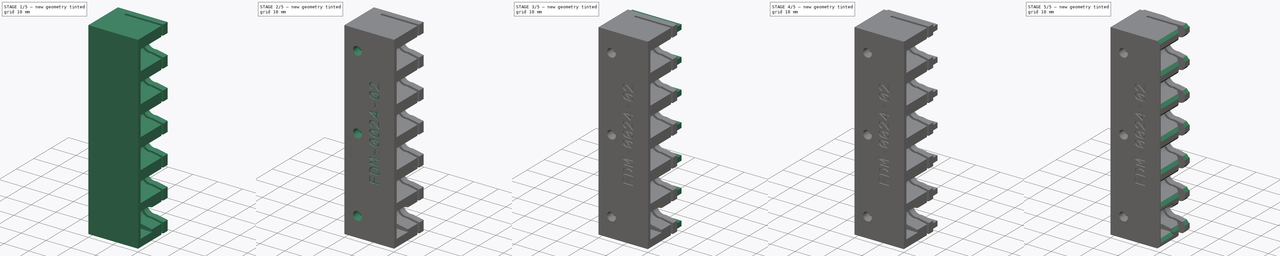
[diagram: build sequence overview — one tinted view per stage of 5, left to right]
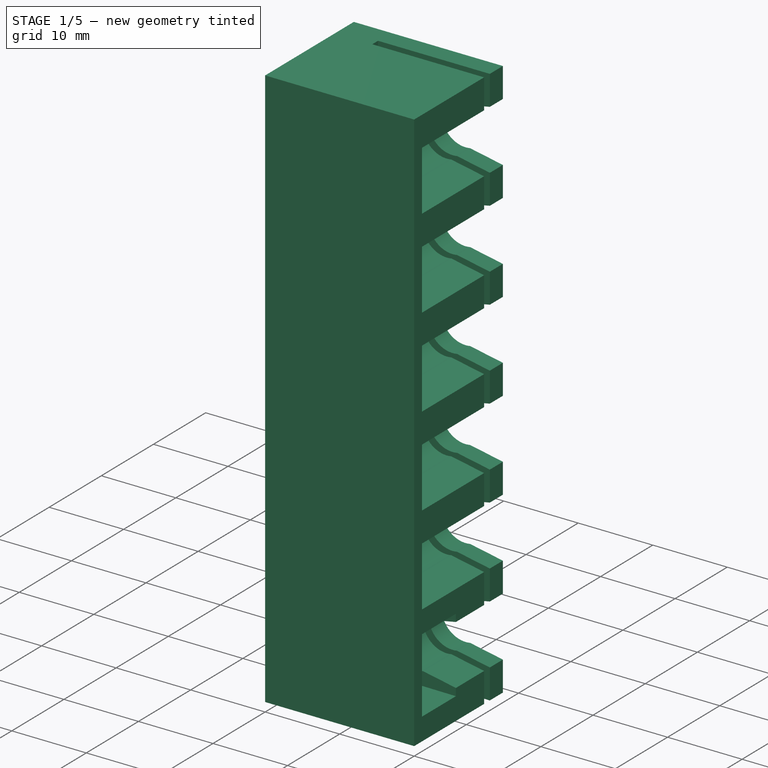
[diagram: stage 1 of 5 — iso view after this stage's code; geometry added in this stage tinted green]
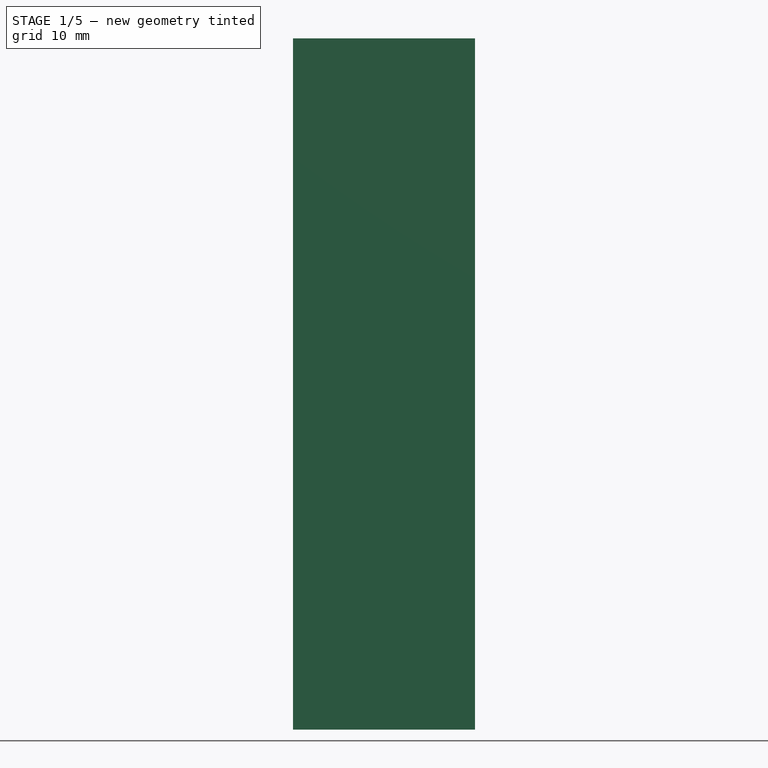
[diagram: stage 1 of 5 — front view after this stage's code; geometry added in this stage tinted green]
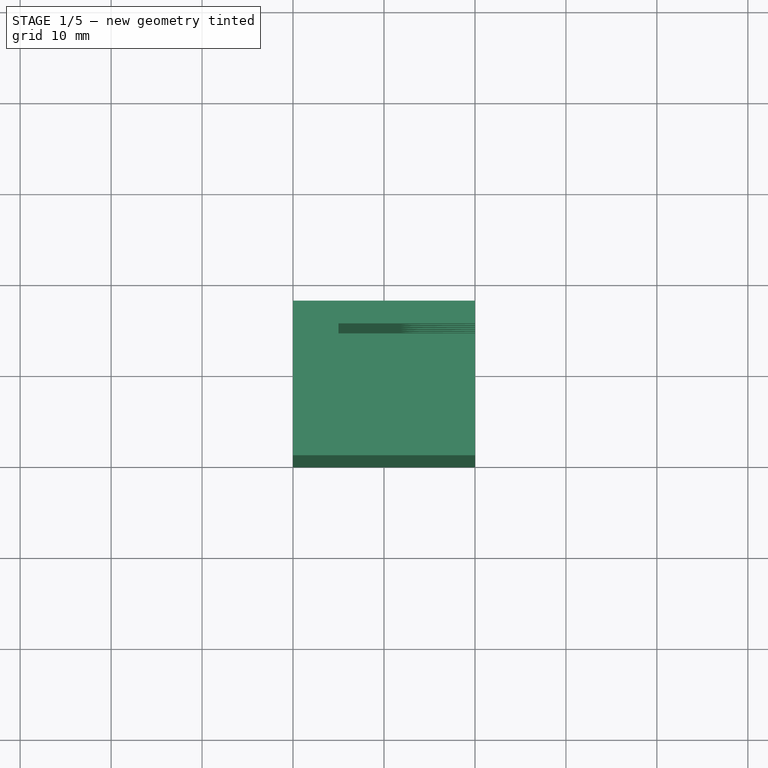
[diagram: stage 1 of 5 — top view after this stage's code; geometry added in this stage tinted green]
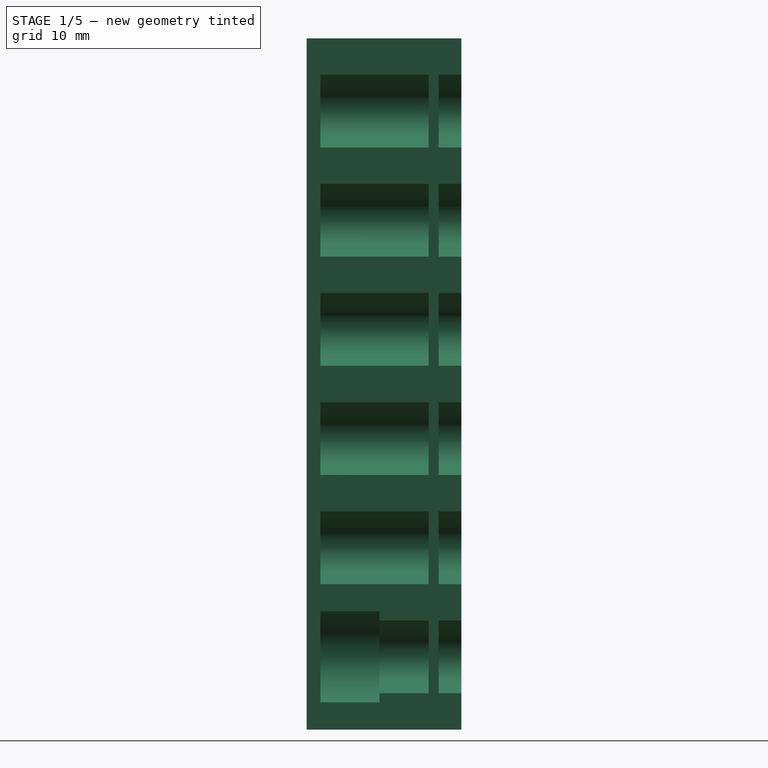
[diagram: stage 1 of 5 — right view after this stage's code; geometry added in this stage tinted green]
FCSTD DOCUMENT  (FreeCAD 0.19R24291 (Git))
Label: FDM-0024_nozzle-holder
License: All rights reserved
LicenseURL: http://en.wikipedia.org/wiki/All_rights_reserved
objects: PartDesign::Pocket×11, Part::Part2DObjectPython×7, Sketcher::SketchObject×6, PartDesign::Plane×3, PartDesign::Chamfer×3, PartDesign::Pad×2, PartDesign::Body×1
note: 49 computed .brp shape members not serialized (recipe doc carries the construction recipe); baked Part::Feature solids carry a one-line shape summary decoded from their .brp

FEATURE [Sketcher::SketchObject] Sketch
  FullyConstrained = true
  MapMode = 5
  Support = -> [XY_Plane]
  sketch-geometry (8):
    g0: LineSegment StartX=20 StartY=17 StartZ=0 EndX=0 EndY=17 EndZ=0
    g1: LineSegment StartX=0 StartY=17 StartZ=0 EndX=0 EndY=0 EndZ=0
    g2: LineSegment StartX=0 StartY=0 StartZ=0 EndX=20 EndY=0 EndZ=0
    g3: LineSegment StartX=20 StartY=13.4 StartZ=0 EndX=5 EndY=13.4 EndZ=0
    g4: LineSegment StartX=5 StartY=13.4 StartZ=0 EndX=5 EndY=14.5 EndZ=0
    g5: LineSegment StartX=5 StartY=14.5 StartZ=0 EndX=20 EndY=14.5 EndZ=0
    g6: LineSegment StartX=20 StartY=14.5 StartZ=0 EndX=20 EndY=17 EndZ=0
    g7: LineSegment StartX=20 StartY=13.4 StartZ=0 EndX=20 EndY=0 EndZ=0
  constraints (23):
    c: Coincident(g0,g1)
    c: Horizontal(g0)
    c: Vertical(g1)
    c: Distance(g1) = 17
    c: Coincident(g2,g1)
    c: Horizontal(g2)
    c: Coincident(g-1,g1)
    c: Horizontal(g3)
    c: Coincident(g4,g3)
    c: Vertical(g4)
    c: Coincident(g5,g4)
    c: Horizontal(g5)
    c: Coincident(g6,g5)
    c: Coincident(g6,g0)
    c: Vertical(g6)
    c: Distance(g6) = 2.5
    c: Distance(g4) = 1.1
    c: Distance(g0) = 20
    c: Distance(g2) = 20
    c: Coincident(g7,g3)
    c: Coincident(g7,g2)
    c: Vertical(g7)
    c: DistanceX(g3,g3) = 15
FEATURE [PartDesign::Pad] Pad
  AllowMultiFace = false
  Direction = (1,1,1)
  Length = 76
  Length2 = 100
  Profile = -> Sketch
  Refine = true
  Type = 0
FEATURE [Sketcher::SketchObject] Sketch001  label="NozzleCutouts"
  ExternalGeometry = -> [Pad]
  FullyConstrained = false
  MapMode = 5
  Placement = pos=(0,17,0) rot=(0,0.707107,0.707107;3.14159rad)
  Support = -> [Pad]
  sketch-geometry (30):
    g0: LineSegment StartX=-15.6 StartY=16.8568 StartZ=0 EndX=-20 EndY=16 EndZ=0
    g1: LineSegment StartX=-15.6 StartY=23.1432 StartZ=0 EndX=-20 EndY=24 EndZ=0
    g2: LineSegment StartX=-15.6 StartY=28.8568 StartZ=0 EndX=-20 EndY=28 EndZ=0
    g3: LineSegment StartX=-15.6 StartY=35.1432 StartZ=0 EndX=-20 EndY=36 EndZ=0
    g4: LineSegment StartX=-15.6 StartY=40.8568 StartZ=0 EndX=-20 EndY=40 EndZ=0
    g5: LineSegment StartX=-15.6 StartY=47.1432 StartZ=0 EndX=-20 EndY=48 EndZ=0
    g6: ArcOfCircle CenterX=-15 CenterY=20 CenterZ=0 NormalX=0 NormalY=0 NormalZ=1 AngleXU=0 Radius=3.2 StartAngle=4.52377 EndAngle=8.0426
    g7: ArcOfCircle CenterX=-15 CenterY=8 CenterZ=0 NormalX=0 NormalY=0 NormalZ=1 AngleXU=0 Radius=3.2 StartAngle=4.52377 EndAngle=8.0426
    g8: ArcOfCircle CenterX=-15 CenterY=32 CenterZ=0 NormalX=0 NormalY=0 NormalZ=1 AngleXU=0 Radius=3.2 StartAngle=4.52377 EndAngle=8.0426
    g9: ArcOfCircle CenterX=-15 CenterY=44 CenterZ=0 NormalX=0 NormalY=0 NormalZ=1 AngleXU=0 Radius=3.2 StartAngle=4.52377 EndAngle=8.0426
    g10: LineSegment StartX=-20 StartY=48 StartZ=0 EndX=-20 EndY=40 EndZ=0
    g11: LineSegment StartX=-20 StartY=36 StartZ=0 EndX=-20 EndY=28 EndZ=0
    g12: LineSegment StartX=-20 StartY=24 StartZ=0 EndX=-20 EndY=16 EndZ=0
    g13: LineSegment StartX=-20 StartY=12 StartZ=0 EndX=-20 EndY=4 EndZ=0
    g14: LineSegment StartX=-15 StartY=8 StartZ=0 EndX=-15 EndY=44 EndZ=0
    g15: LineSegment StartX=-20 StartY=12 StartZ=0 EndX=-15.6 EndY=11.1432 EndZ=0
    g16: LineSegment StartX=-20 StartY=4 StartZ=0 EndX=-15.6 EndY=4.85675 EndZ=0
    g17: LineSegment StartX=-15 StartY=8 StartZ=0 EndX=-20 EndY=8 EndZ=0
    g18: LineSegment StartX=-15.6 StartY=4.85675 StartZ=0 EndX=-15.6 EndY=47.1432 EndZ=0
    g19: LineSegment StartX=-15 StartY=20 StartZ=0 EndX=-20 EndY=20 EndZ=0
    g20: LineSegment StartX=-15 StartY=32 StartZ=0 EndX=-20 EndY=32 EndZ=0
    g21: LineSegment StartX=-15 StartY=44 StartZ=0 EndX=-20 EndY=44 EndZ=0
    g22: LineSegment StartX=-20 StartY=60 StartZ=0 EndX=-20 EndY=52 EndZ=0
    g23: LineSegment StartX=-15.6 StartY=59.1432 StartZ=0 EndX=-20 EndY=60 EndZ=0
    g24: LineSegment StartX=-15.6 StartY=52.8568 StartZ=0 EndX=-20 EndY=52 EndZ=0
    g25: ArcOfCircle CenterX=-15 CenterY=56 CenterZ=0 NormalX=0 NormalY=0 NormalZ=1 AngleXU=0 Radius=3.2 StartAngle=4.52377 EndAngle=8.0426
    g26: LineSegment StartX=-15.6 StartY=64.8568 StartZ=0 EndX=-20 EndY=64 EndZ=0
    g27: ArcOfCircle CenterX=-15 CenterY=68 CenterZ=0 NormalX=0 NormalY=0 NormalZ=1 AngleXU=0 Radius=3.2 StartAngle=4.52377 EndAngle=8.0426
    g28: LineSegment StartX=-15.6 StartY=71.1432 StartZ=0 EndX=-20 EndY=72 EndZ=0
    g29: LineSegment StartX=-20 StartY=72 StartZ=0 EndX=-20 EndY=64 EndZ=0
  constraints (87):
    c: Coincident(g6,g1)
    c: Coincident(g6,g0)
    c: Diameter(g6) = 6.4
    c: Coincident(g8,g3)
    c: Coincident(g8,g2)
    c: Coincident(g9,g5)
    c: Coincident(g9,g4)
    c: Diameter(g7) = 6.4
    c: Diameter(g8) = 6.4
    c: Diameter(g9) = 6.4
    c: Coincident(g10,g5)
    c: Coincident(g10,g4)
    c: Coincident(g11,g3)
    c: Coincident(g11,g2)
    c: Coincident(g12,g1)
    c: Coincident(g12,g0)
    c: DistanceX(g7,g-1) = 15
    c: Vertical(g11)
    c: Vertical(g12)
    c: Vertical(g13)
    c: Vertical(g10)
    c: PointOnObject(g2,g13)
    c: PointOnObject(g0,g13)
    c: DistanceX(g13,g-1) = 20
    c: DistanceY(g-1,g6) = 20
    c: Coincident(g14,g7)
    c: Coincident(g14,g9)
    c: Vertical(g14)
    c: PointOnObject(g8,g14)
    c: PointOnObject(g6,g14)
    c: DistanceY(g-1,g7) = 8
    c: Coincident(g15,g13)
    c: Coincident(g16,g13)
    c: Coincident(g7,g15)
    c: Coincident(g7,g16)
    c: DistanceY(g13,g13) = 8
    c: Coincident(g17,g7)
    c: PointOnObject(g17,g13)
    c: Symmetric(g13,g13,g17)
    c: Coincident(g18,g7)
    c: Vertical(g18)
    c: DistanceX(g7,g7) = 0.6
    c: PointOnObject(g7,g18)
    c: PointOnObject(g1,g18)
    c: PointOnObject(g0,g18)
    c: DistanceY(g12,g12) = 8
    c: Coincident(g19,g6)
    c: PointOnObject(g19,g12)
    c: Symmetric(g1,g0,g19)
    c: PointOnObject(g3,g18)
    c: PointOnObject(g2,g18)
    c: PointOnObject(g20,g11)
    c: DistanceY(g11,g11) = 8
    c: Symmetric(g3,g2,g20)
    c: Coincident(g20,g8)
    c: PointOnObject(g4,g18)
    c: Coincident(g5,g18)
    c: Coincident(g21,g9)
    c: PointOnObject(g21,g10)
    c: DistanceY(g10,g10) = 8
    c: Symmetric(g5,g4,g21)
    c: Coincident(g25,g23)
    c: Coincident(g25,g24)
    c: Coincident(g22,g23)
    c: Coincident(g22,g24)
    c: Vertical(g22)
    c: Equal(g10,g22) = 11
    c: Coincident(g27,g28)
    c: Coincident(g27,g26)
    c: Coincident(g29,g28)
    c: Coincident(g29,g26)
    c: Vertical(g29)
    c: Diameter(g27) = 6.4
    c: Vertical(g24,g5)
    c: Parallel(g28,g23)
    c: Parallel(g23,g5)
    c: Diameter(g25) = 6.4
    c: Vertical(g24,g23)
    c: Vertical(g5,g26)
    c: Vertical(g26,g27)
    c: Vertical(g25,g27)
    c: Vertical(g27,g9)
    c: Parallel(g26,g24)
    c: DistanceY(g-4,g8) = 32
    c: DistanceY(g-4,g9) = 44
    c: DistanceY(g-4,g25) = 56
    c: DistanceY(g-4,g27) = 68
FEATURE [PartDesign::Pocket] Pocket  label="pkt_NozzleCutouts"
  AllowMultiFace = false
  BaseFeature = -> Pad
  Length = 15.5
  Length2 = 100
  Profile = -> Sketch001
  Refine = true
  Type = 0
FEATURE [Sketcher::SketchObject] Sketch005  label="M3Holes"
  FullyConstrained = true
  MapMode = 2
  Placement = pos=(0,0,0) rot=(0.57735,0.57735,0.57735;4.18879rad)
  Support = -> [Z_Axis]
  sketch-geometry (4):
    g0: Circle CenterX=68 CenterY=5.25 CenterZ=0 NormalX=0 NormalY=0 NormalZ=1 AngleXU=0 Radius=1.75
    g1: Circle CenterX=8 CenterY=5.25 CenterZ=0 NormalX=0 NormalY=0 NormalZ=1 AngleXU=0 Radius=1.75
    g2: Circle CenterX=38 CenterY=5.25 CenterZ=0 NormalX=0 NormalY=0 NormalZ=1 AngleXU=0 Radius=1.75
    g3: LineSegment StartX=8 StartY=5.25 StartZ=0 EndX=68 EndY=5.25 EndZ=0
  constraints (11):
    c: Diameter(g0) = 3.5
    c: Diameter(g1) = 3.5
    c: Diameter(g2) = 3.5
    c: DistanceY(g-1,g1) = 5.25
    c: DistanceX(g-1,g1) = 8
    c: DistanceX(g-1,g2) = 38
    c: DistanceX(g-1,g0) = 68
    c: Coincident(g3,g1)
    c: Horizontal(g3)
    c: Coincident(g0,g3)
    c: PointOnObject(g2,g3)
FEATURE [Sketcher::SketchObject] Sketch006  label="M3SquareNutCutOut"
  FullyConstrained = true
  MapMode = 5
  Placement = pos=(0,0,0) rot=(0.57735,-0.57735,-0.57735;2.0944rad)
  sketch-geometry (15):
    g0: LineSegment StartX=-6 StartY=70.9 StartZ=0 EndX=-3.2 EndY=70.9 EndZ=0
    g1: LineSegment StartX=-3.2 StartY=70.9 StartZ=0 EndX=-3.2 EndY=65.1 EndZ=0
    g2: LineSegment StartX=-3.2 StartY=65.1 StartZ=0 EndX=-6 EndY=65.1 EndZ=0
    g3: LineSegment StartX=-6 StartY=65.1 StartZ=0 EndX=-6 EndY=70.9 EndZ=0
    g4: LineSegment StartX=-6 StartY=40.9 StartZ=0 EndX=-3.2 EndY=40.9 EndZ=0
    g5: LineSegment StartX=-3.2 StartY=40.9 StartZ=0 EndX=-3.2 EndY=35.1 EndZ=0
    g6: LineSegment StartX=-3.2 StartY=35.1 StartZ=0 EndX=-6 EndY=35.1 EndZ=0
    g7: LineSegment StartX=-6 StartY=35.1 StartZ=0 EndX=-6 EndY=40.9 EndZ=0
    g8: LineSegment StartX=-6 StartY=10.9 StartZ=0 EndX=-3.2 EndY=10.9 EndZ=0
    g9: LineSegment StartX=-3.2 StartY=10.9 StartZ=0 EndX=-3.2 EndY=5.1 EndZ=0
    g10: LineSegment StartX=-3.2 StartY=5.1 StartZ=0 EndX=-6 EndY=5.1 EndZ=0
    g11: LineSegment StartX=-6 StartY=5.1 StartZ=0 EndX=-6 EndY=10.9 EndZ=0
    g12: LineSegment StartX=0 StartY=8 StartZ=0 EndX=20 EndY=8 EndZ=0
    g13: LineSegment StartX=0 StartY=38 StartZ=0 EndX=20 EndY=38 EndZ=0
    g14: LineSegment StartX=0 StartY=68 StartZ=0 EndX=20 EndY=68 EndZ=0
  constraints (45):
    c: Coincident(g0,g1)
    c: Coincident(g1,g2)
    c: Coincident(g2,g3)
    c: Coincident(g3,g0)
    c: Horizontal(g0)
    c: Horizontal(g2)
    c: Vertical(g1)
    c: Vertical(g3)
    c: Coincident(g4,g5)
    c: Coincident(g5,g6)
    c: Coincident(g6,g7)
    c: Coincident(g7,g4)
    c: Horizontal(g4)
    c: Horizontal(g6)
    c: Vertical(g5)
    c: Vertical(g7)
    c: Coincident(g8,g9)
    c: Coincident(g9,g10)
    c: Coincident(g10,g11)
    c: Coincident(g11,g8)
    c: Horizontal(g8)
    c: Horizontal(g10)
    c: Vertical(g9)
    c: Vertical(g11)
    c: Equal(g1,g5)
    c: Equal(g5,g9)
    c: Equal(g2,g6)
    c: Equal(g6,g10)
    c: DistanceX(g-1,g10) = -6
    c: DistanceX(g-1,g6) = -6
    c: DistanceX(g-1,g2) = -6
    c: DistanceX(g8,g8) = 2.8
    c: PointOnObject(g12,g-2)
    c: PointOnObject(g13,g-2)
    c: PointOnObject(g14,g-2)
    c: DistanceY(g-1,g12) = 8
    c: DistanceY(g-1,g13) = 38
    c: DistanceY(g-1,g14) = 68
    c: Symmetric(g10,g8,g12)
    c: Symmetric(g6,g4,g13)
    c: Symmetric(g2,g0,g14)
    c: DistanceY(g5,g5) = 5.8
    c: Equal(g12,g13)
    c: Equal(g13,g14)
    c: DistanceX(g14,g14) = 20
FEATURE [Part::Part2DObjectPython] ShapeString002  label="N045"  # Draft 2D object (typed FeaturePython)
  FontFile = ../../lib/fonts/RobotoMono-VariableFont_weight.ttf
  Placement = pos=(1,17,70) rot=(-1,0,0;1.5708rad)
  Size = 5
  String = 45
  Tracking = 0
FEATURE [Part::Part2DObjectPython] ShapeString003  label="N08"  # Draft 2D object (typed FeaturePython)
  FontFile = ../../lib/fonts/RobotoMono-VariableFont_weight.ttf
  Placement = pos=(1,17,58) rot=(-1,0,0;1.5708rad)
  Size = 5
  String = 8
  Tracking = 0
FEATURE [Part::Part2DObjectPython] ShapeString004  label="N14"  # Draft 2D object (typed FeaturePython)
  FontFile = ../../lib/fonts/RobotoMono-VariableFont_weight.ttf
  Placement = pos=(1,17,46) rot=(-1,0,0;1.5708rad)
  Size = 5
  String = 14
  Tracking = 0
FEATURE [Part::Part2DObjectPython] ShapeString005  label="N24"  # Draft 2D object (typed FeaturePython)
  FontFile = ../../lib/fonts/RobotoMono-VariableFont_weight.ttf
  Placement = pos=(1,17,34) rot=(-1,0,0;1.5708rad)
  Size = 5
  String = 24
  Tracking = 0
FEATURE [Part::Part2DObjectPython] ShapeString006  label="N40"  # Draft 2D object (typed FeaturePython)
  FontFile = ../../lib/fonts/RobotoMono-VariableFont_weight.ttf
  Placement = pos=(1,17,22) rot=(-1,0,0;1.5708rad)
  Size = 5
  String = 40
  Tracking = 0
FEATURE [Part::Part2DObjectPython] ShapeString007  label="N75"  # Draft 2D object (typed FeaturePython)
  FontFile = ../../lib/fonts/RobotoMono-VariableFont_weight.ttf
  Placement = pos=(1,17,10) rot=(-1,0,0;1.5708rad)
  Size = 5
  String = 75
  Tracking = 0
FEATURE [Sketcher::SketchObject] Sketch008  label="NozzleCutouts001"
  AttachmentOffset = pos=(0,0,-9) rot=(0,0,1;0rad)
  ExternalGeometry = -> [Pad]
  FullyConstrained = false
  MapMode = 5
  Placement = pos=(0,8,2e-15) rot=(0,0.707107,0.707107;3.14159rad)
  Support = -> [Pad]
  sketch-geometry (7):
    g0: ArcOfCircle CenterX=-15 CenterY=8 CenterZ=0 NormalX=0 NormalY=0 NormalZ=1 AngleXU=0 Radius=5 StartAngle=4.5921 EndAngle=7.97427
    g1: LineSegment StartX=-20 StartY=13 StartZ=0 EndX=-20 EndY=3 EndZ=0
    g2: LineSegment StartX=-15 StartY=8 StartZ=0 EndX=-15 EndY=44 EndZ=0
    g3: LineSegment StartX=-20 StartY=13 StartZ=0 EndX=-15.6 EndY=12.9639 EndZ=0
    g4: LineSegment StartX=-20 StartY=3 StartZ=0 EndX=-15.6 EndY=3.03613 EndZ=0
    g5: LineSegment StartX=-15 StartY=8 StartZ=0 EndX=-20 EndY=8 EndZ=0
    g6: LineSegment StartX=-15.6 StartY=3.03613 StartZ=0 EndX=-15.6 EndY=47.1432 EndZ=0
  constraints (19):
    c: Diameter(g0) = 10
    c: DistanceX(g0,g-1) = 15
    c: Vertical(g1)
    c: DistanceX(g1,g-1) = 20
    c: Coincident(g2,g0)
    c: Vertical(g2)
    c: DistanceY(g-1,g0) = 8
    c: Coincident(g3,g1)
    c: Coincident(g4,g1)
    c: Coincident(g0,g3)
    c: Coincident(g0,g4)
    c: DistanceY(g1,g1) = 10
    c: Coincident(g5,g0)
    c: PointOnObject(g5,g1)
    c: Symmetric(g1,g1,g5)
    c: Coincident(g6,g0)
    c: Vertical(g6)
    c: DistanceX(g0,g0) = 0.6
    c: PointOnObject(g0,g6)
FEATURE [PartDesign::Pocket] Pocket015  label="N75_Large_Cutout"
  BaseFeature = -> Pocket
  Length = 6.5
  Length2 = 100
  Profile = -> Sketch008
  Type = 0
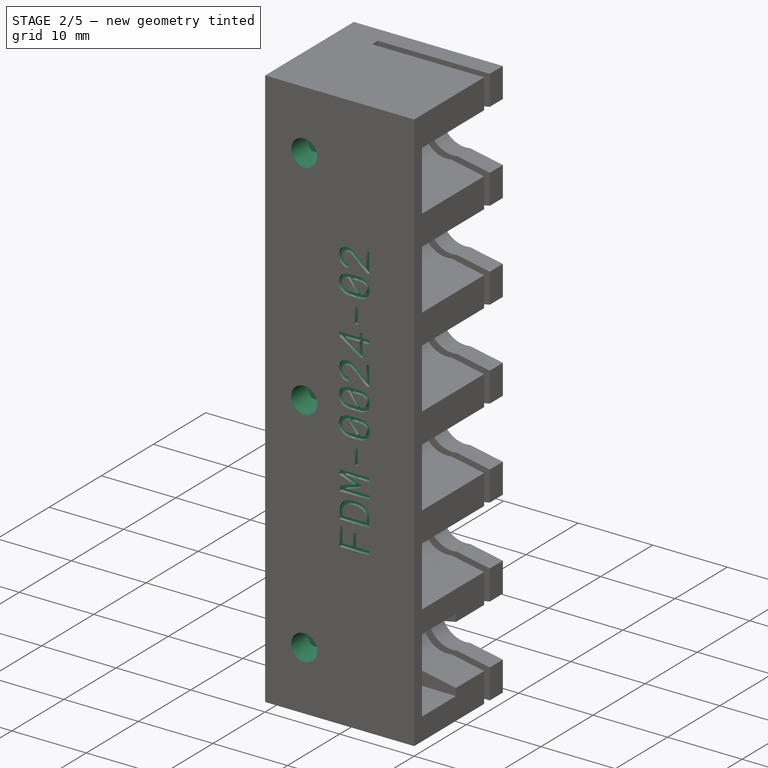
[diagram: stage 2 of 5 — iso view after this stage's code; geometry added in this stage tinted green]
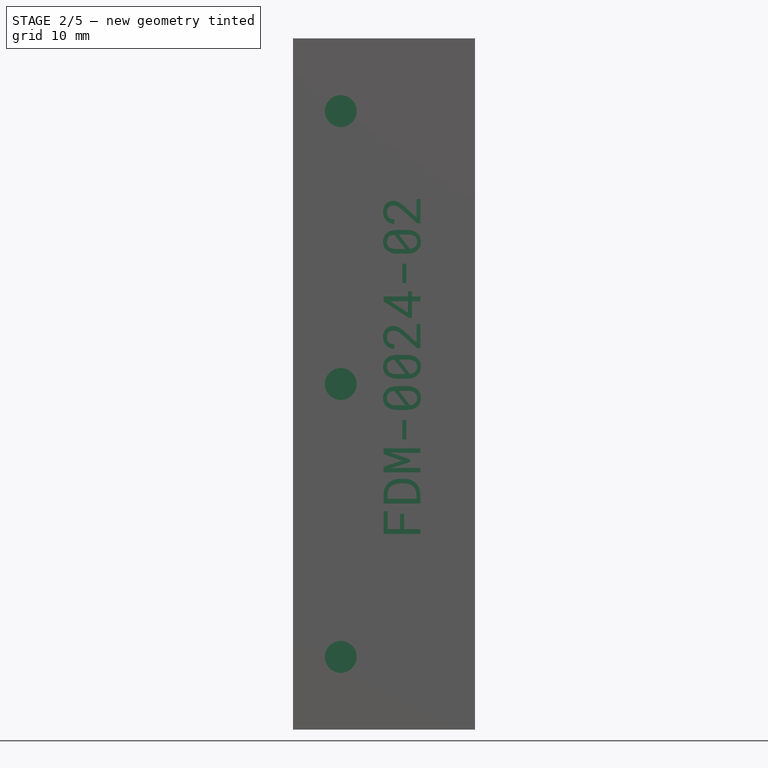
[diagram: stage 2 of 5 — front view after this stage's code; geometry added in this stage tinted green]
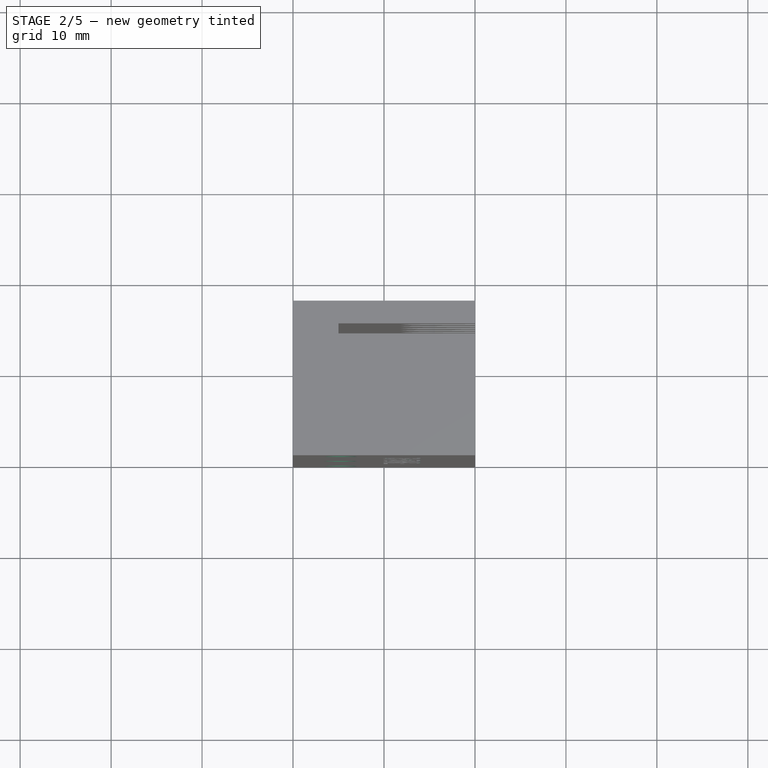
[diagram: stage 2 of 5 — top view after this stage's code; geometry added in this stage tinted green]
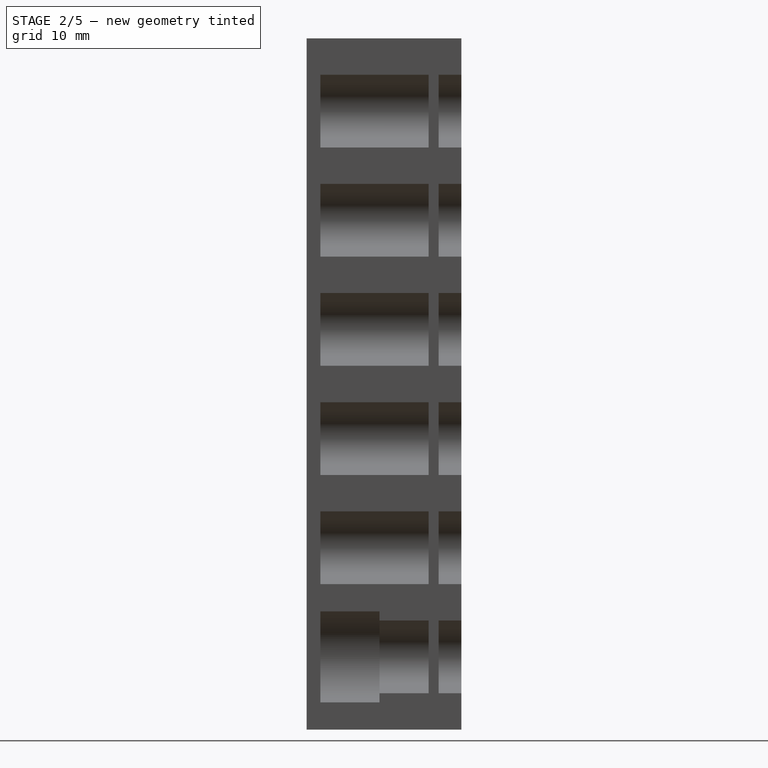
[diagram: stage 2 of 5 — right view after this stage's code; geometry added in this stage tinted green]
FEATURE [PartDesign::Pocket] Pocket003  label="pkt_m3"
  AllowMultiFace = false
  BaseFeature = -> Pocket015
  Length = 10
  Length2 = 100
  Profile = -> Sketch005
  Refine = true
  Reversed = true
  Type = 0
FEATURE [PartDesign::Plane] DatumPlane  label="Datum"
  Length = 64.2127
  MapMode = 5
  Placement = pos=(0,0,0) rot=(0.57735,-0.57735,-0.57735;2.0944rad)
  ResizeMode = 0
  Support = -> [Pocket003]
  Width = 115.213
FEATURE [PartDesign::Plane] DatumPlane001
  Length = 64.2127
  MapMode = 5
  Placement = pos=(0,0,0) rot=(1,0,0;1.5708rad)
  ResizeMode = 0
  Support = -> [Pocket003]
  Width = 115.213
FEATURE [Sketcher::SketchObject] Sketch007  label="Ribs"
  FullyConstrained = true
  MapMode = 5
  Placement = pos=(0,0,0) rot=(0.57735,-0.57735,-0.57735;2.0944rad)
  Support = -> [DatumPlane]
  sketch-geometry (35):
    g0: LineSegment StartX=-17 StartY=15 StartZ=0 EndX=-19.5 EndY=15 EndZ=0
    g1: LineSegment StartX=-19.5 StartY=15 StartZ=0 EndX=-19.5 EndY=13 EndZ=0
    g2: LineSegment StartX=-19.5 StartY=13 StartZ=0 EndX=-17 EndY=13 EndZ=0
    g3: LineSegment StartX=-17 StartY=13 StartZ=0 EndX=-17 EndY=15 EndZ=0
    g4: LineSegment StartX=-17 StartY=27 StartZ=0 EndX=-19.5 EndY=27 EndZ=0
    g5: LineSegment StartX=-19.5 StartY=27 StartZ=0 EndX=-19.5 EndY=25 EndZ=0
    g6: LineSegment StartX=-19.5 StartY=25 StartZ=0 EndX=-17 EndY=25 EndZ=0
    g7: LineSegment StartX=-17 StartY=25 StartZ=0 EndX=-17 EndY=27 EndZ=0
    g8: LineSegment StartX=-17 StartY=39 StartZ=0 EndX=-19.5 EndY=39 EndZ=0
    g9: LineSegment StartX=-19.5 StartY=39 StartZ=0 EndX=-19.5 EndY=37 EndZ=0
    g10: LineSegment StartX=-19.5 StartY=37 StartZ=0 EndX=-17 EndY=37 EndZ=0
    g11: LineSegment StartX=-17 StartY=37 StartZ=0 EndX=-17 EndY=39 EndZ=0
    g12: LineSegment StartX=-17 StartY=51 StartZ=0 EndX=-19.5 EndY=51 EndZ=0
    g13: LineSegment StartX=-19.5 StartY=51 StartZ=0 EndX=-19.5 EndY=49 EndZ=0
    g14: LineSegment StartX=-19.5 StartY=49 StartZ=0 EndX=-17 EndY=49 EndZ=0
    g15: LineSegment StartX=-17 StartY=49 StartZ=0 EndX=-17 EndY=51 EndZ=0
    g16: LineSegment StartX=-17 StartY=63 StartZ=0 EndX=-19.5 EndY=63 EndZ=0
    g17: LineSegment StartX=-19.5 StartY=63 StartZ=0 EndX=-19.5 EndY=61 EndZ=0
    g18: LineSegment StartX=-19.5 StartY=61 StartZ=0 EndX=-17 EndY=61 EndZ=0
    g19: LineSegment StartX=-17 StartY=61 StartZ=0 EndX=-17 EndY=63 EndZ=0
    g20: LineSegment StartX=-17 StartY=75 StartZ=0 EndX=-19.5 EndY=75 EndZ=0
    g21: LineSegment StartX=-19.5 StartY=75 StartZ=0 EndX=-19.5 EndY=73 EndZ=0
    g22: LineSegment StartX=-19.5 StartY=73 StartZ=0 EndX=-17 EndY=73 EndZ=0
    g23: LineSegment StartX=-17 StartY=73 StartZ=0 EndX=-17 EndY=75 EndZ=0
    g24: LineSegment StartX=-17 StartY=3 StartZ=0 EndX=-19.5 EndY=3 EndZ=0
    g25: LineSegment StartX=-19.5 StartY=3 StartZ=0 EndX=-19.5 EndY=1 EndZ=0
    g26: LineSegment StartX=-19.5 StartY=1 StartZ=0 EndX=-17 EndY=1 EndZ=0
    g27: LineSegment StartX=-17 StartY=1 StartZ=0 EndX=-17 EndY=3 EndZ=0
    g28: LineSegment StartX=-17 StartY=1 StartZ=0 EndX=-17 EndY=0 EndZ=0
    g29: LineSegment StartX=-17 StartY=3 StartZ=0 EndX=-17 EndY=13 EndZ=0
    g30: LineSegment StartX=-17 StartY=15 StartZ=0 EndX=-17 EndY=25 EndZ=0
    g31: LineSegment StartX=-17 StartY=27 StartZ=0 EndX=-17 EndY=37 EndZ=0
    g32: LineSegment StartX=-17 StartY=39 StartZ=0 EndX=-17 EndY=49 EndZ=0
    g33: LineSegment StartX=-17 StartY=51 StartZ=0 EndX=-17 EndY=61 EndZ=0
    g34: LineSegment StartX=-17 StartY=63 StartZ=0 EndX=-17 EndY=73 EndZ=0
  constraints (99):
    c: Coincident(g0,g1)
    c: Coincident(g1,g2)
    c: Coincident(g2,g3)
    c: Coincident(g3,g0)
    c: Horizontal(g0)
    c: Horizontal(g2)
    c: Vertical(g1)
    c: Vertical(g3)
    c: Coincident(g4,g5)
    c: Coincident(g5,g6)
    c: Coincident(g6,g7)
    c: Coincident(g7,g4)
    c: Horizontal(g4)
    c: Horizontal(g6)
    c: Vertical(g5)
    c: Vertical(g7)
    c: Coincident(g8,g9)
    c: Coincident(g9,g10)
    c: Coincident(g10,g11)
    c: Coincident(g11,g8)
    c: Horizontal(g8)
    c: Horizontal(g10)
    c: Vertical(g9)
    c: Vertical(g11)
    c: Coincident(g12,g13)
    c: Coincident(g13,g14)
    c: Coincident(g14,g15)
    c: Coincident(g15,g12)
    c: Horizontal(g12)
    c: Horizontal(g14)
    c: Vertical(g13)
    c: Vertical(g15)
    c: Coincident(g16,g17)
    c: Coincident(g17,g18)
    c: Coincident(g18,g19)
    c: Coincident(g19,g16)
    c: Horizontal(g16)
    c: Horizontal(g18)
    c: Vertical(g17)
    c: Vertical(g19)
    c: Coincident(g20,g21)
    c: Coincident(g21,g22)
    c: Coincident(g22,g23)
    c: Coincident(g23,g20)
    c: Horizontal(g20)
    c: Horizontal(g22)
    c: Vertical(g21)
    c: Vertical(g23)
    c: Coincident(g24,g25)
    c: Coincident(g25,g26)
    c: Coincident(g26,g27)
    c: Coincident(g27,g24)
    c: Horizontal(g24)
    c: Horizontal(g26)
    c: Vertical(g25)
    c: Vertical(g27)
    c: DistanceX(g22,g22) = 2.5
    c: Equal(g22,g18)
    c: Equal(g18,g14)
    c: Equal(g14,g10)
    c: Equal(g10,g6)
    c: Equal(g6,g2)
    c: Equal(g2,g26)
    c: DistanceY(g21,g21) = 2
    c: Equal(g21,g17)
    c: Equal(g17,g13)
    c: Equal(g13,g9)
    c: Equal(g9,g5)
    c: Equal(g5,g1)
    c: Equal(g1,g25)
    c: Coincident(g28,g26)
    c: PointOnObject(g28,g-1)
    c: Vertical(g28)
    c: Coincident(g29,g24)
    c: Coincident(g29,g2)
    c: Vertical(g29)
    c: Coincident(g30,g0)
    c: Coincident(g30,g6)
    c: Vertical(g30)
    c: Coincident(g31,g4)
    c: Coincident(g31,g10)
    c: Vertical(g31)
    c: Coincident(g32,g8)
    c: Coincident(g32,g14)
    c: Vertical(g32)
    c: Coincident(g33,g12)
    c: Coincident(g33,g18)
    c: Vertical(g33)
    c: Coincident(g34,g16)
    c: Coincident(g34,g22)
    c: Vertical(g34)
    c: DistanceY(g34,g34) = 10
    c: DistanceX(g28,g-1) = 17
    c: Equal(g34,g33)
    c: Equal(g33,g32)
    c: Equal(g32,g31)
    c: Equal(g31,g30)
    c: Equal(g30,g29)
    c: DistanceY(g28,g28) = 1
FEATURE [Part::Part2DObjectPython] ShapeString008  label="PN"  # Draft 2D object (typed FeaturePython)
  AttachmentOffset = pos=(14,21,0) rot=(0,0,1;1.5708rad)
  FontFile = ../../lib/fonts/RobotoMono-VariableFont_weight.ttf
  MapMode = 5
  Placement = pos=(14,4.7e-15,21) rot=(0.57735,-0.57735,0.57735;2.0944rad)
  Size = 5
  String = FDM-0024-02
  Support = -> [DatumPlane001]
  Tracking = 0
FEATURE [PartDesign::Pocket] Pocket014
  BaseFeature = -> Pocket003
  Length = 0.4
  Length2 = 100
  Profile = -> ShapeString008
  Type = 0
FEATURE [PartDesign::Pocket] Pocket006  label="pkt_nuts"
  BaseFeature = -> Pocket014
  Length = 9.5
  Length2 = 100
  Profile = -> Sketch006
  Type = 0
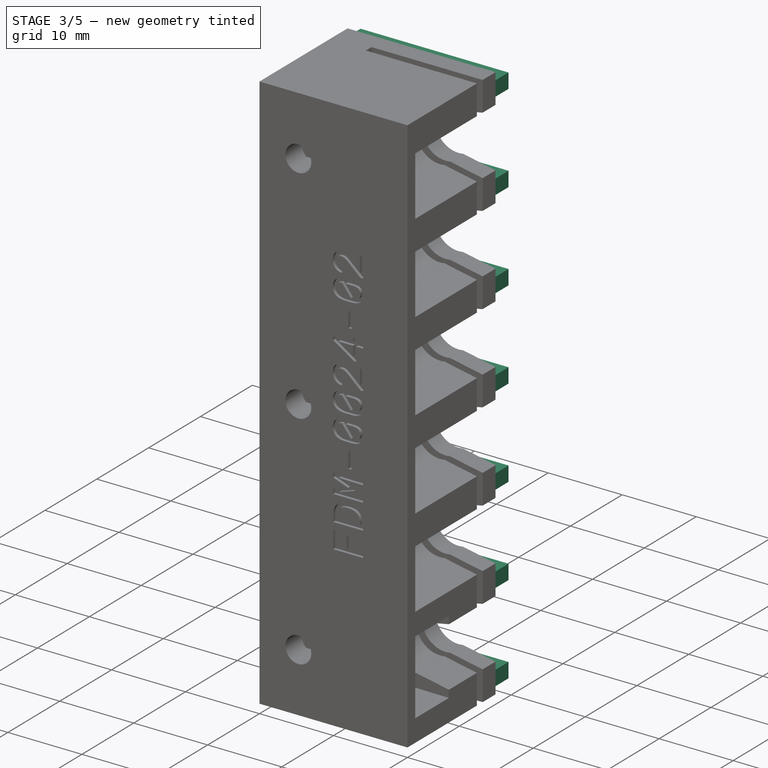
[diagram: stage 3 of 5 — iso view after this stage's code; geometry added in this stage tinted green]
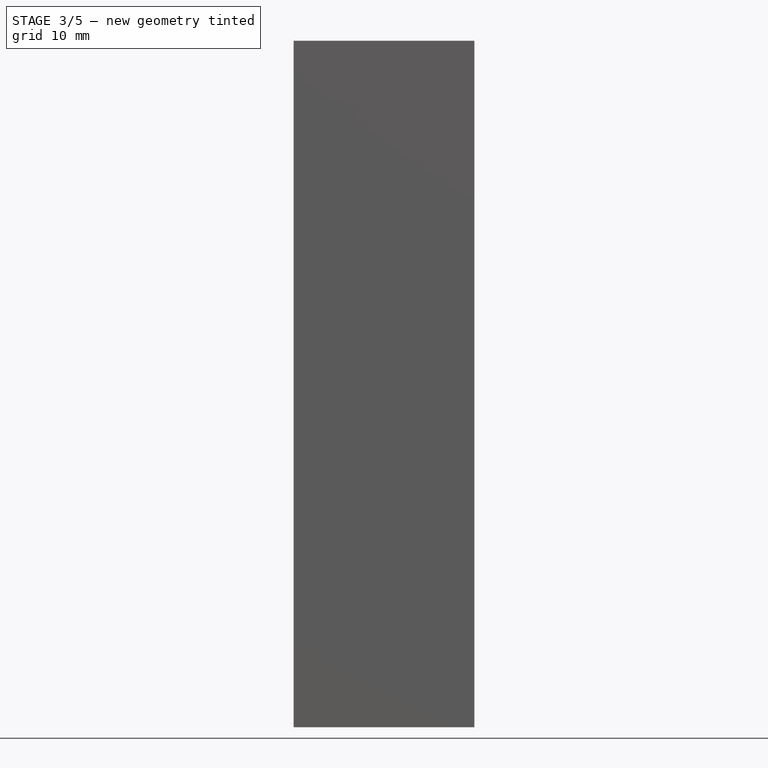
[diagram: stage 3 of 5 — front view after this stage's code; geometry added in this stage tinted green]
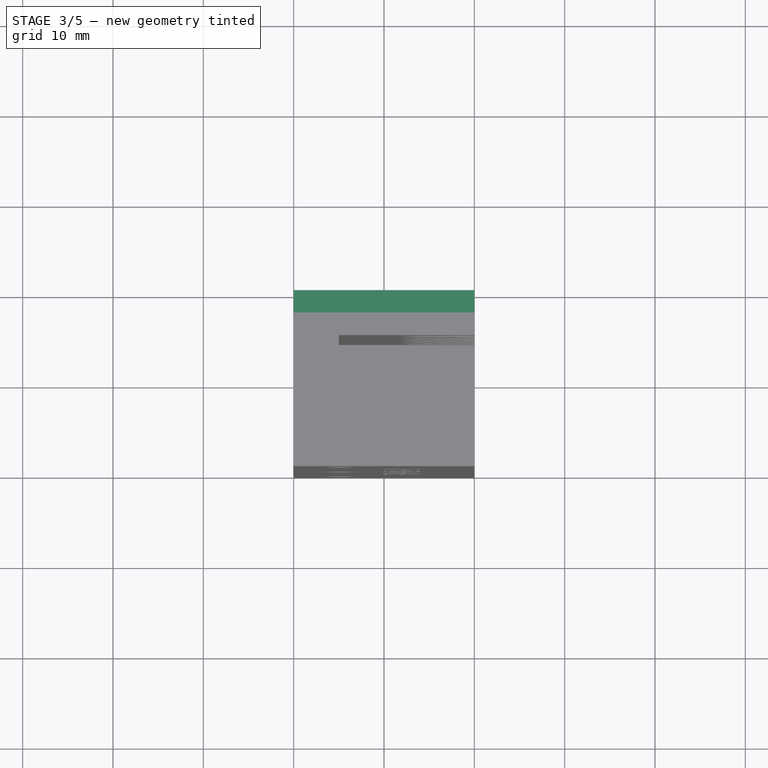
[diagram: stage 3 of 5 — top view after this stage's code; geometry added in this stage tinted green]
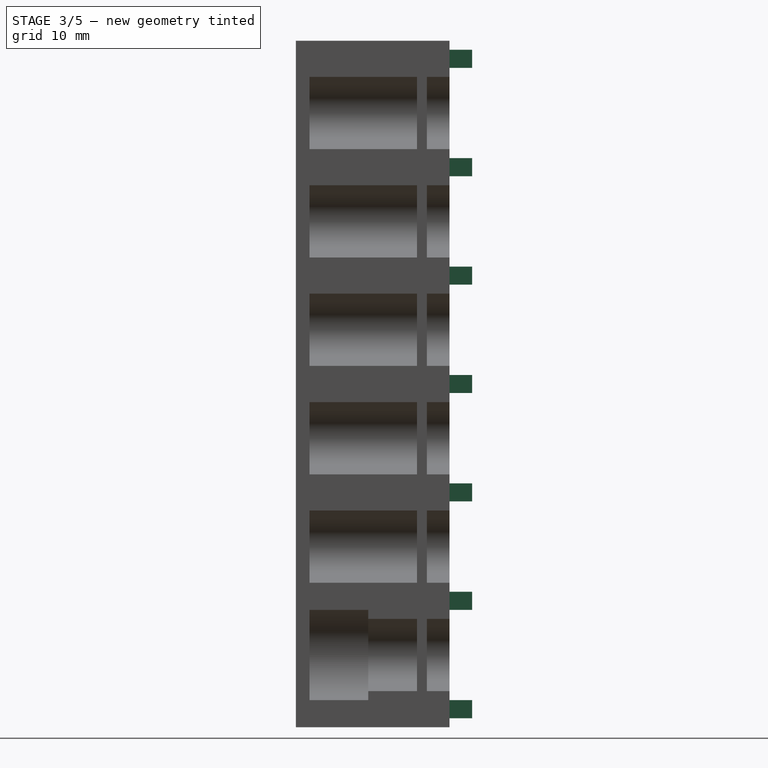
[diagram: stage 3 of 5 — right view after this stage's code; geometry added in this stage tinted green]
FEATURE [PartDesign::Pad] Pad001  label="P_RIBS"
  BaseFeature = -> Pocket006
  Direction = (1,1,1)
  Length = 20
  Length2 = 100
  Profile = -> Sketch007
  Reversed = true
  Type = 0
FEATURE [PartDesign::Pocket] Pocket008  label="P_N045"
  BaseFeature = -> Pad001
  Length = 0.6
  Length2 = 100
  Profile = -> ShapeString002
  Type = 0
FEATURE [PartDesign::Pocket] Pocket009  label="P_N08"
  BaseFeature = -> Pocket008
  Length = 0.6
  Length2 = 100
  Profile = -> ShapeString003
  Type = 0
FEATURE [PartDesign::Pocket] Pocket010  label="P_N14"
  BaseFeature = -> Pocket009
  Length = 0.6
  Length2 = 100
  Profile = -> ShapeString004
  Type = 0
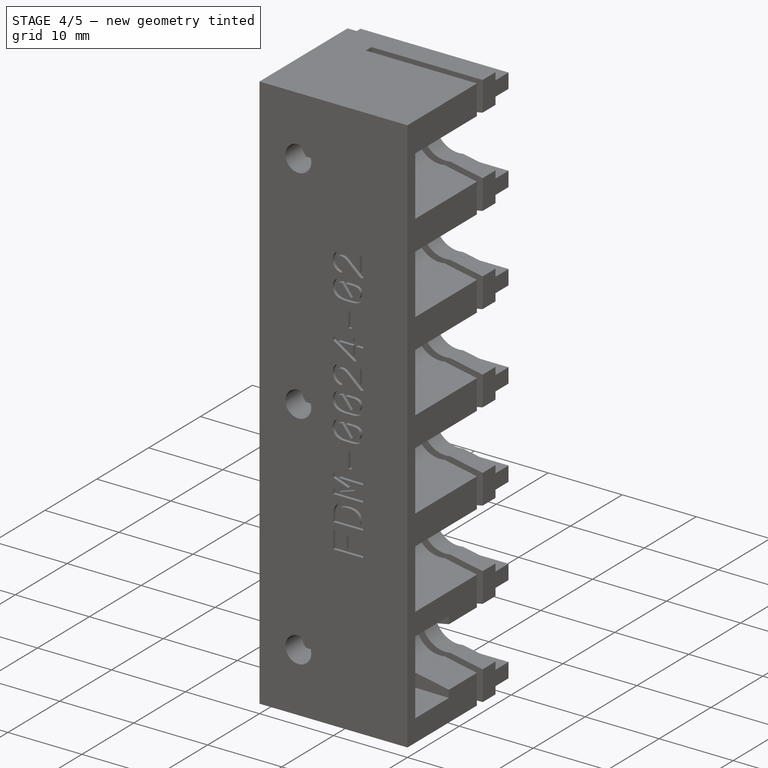
[diagram: stage 4 of 5 — iso view after this stage's code; geometry added in this stage tinted green]
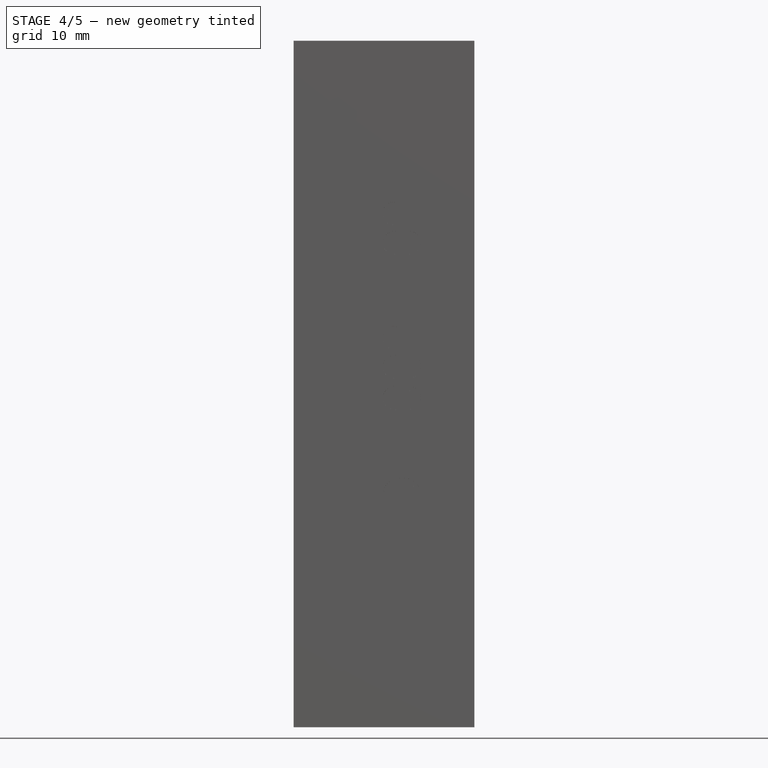
[diagram: stage 4 of 5 — front view after this stage's code; geometry added in this stage tinted green]
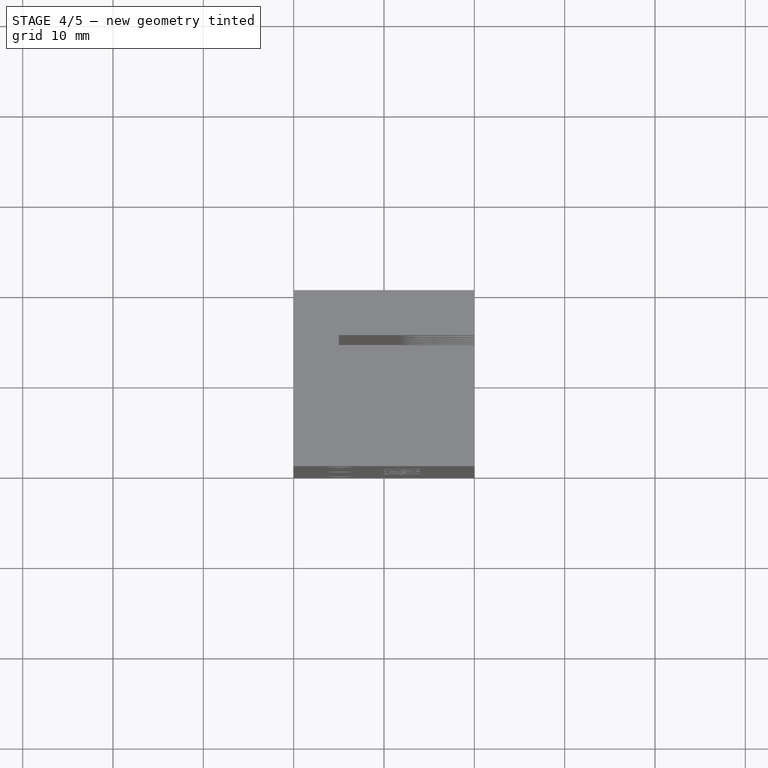
[diagram: stage 4 of 5 — top view after this stage's code; geometry added in this stage tinted green]
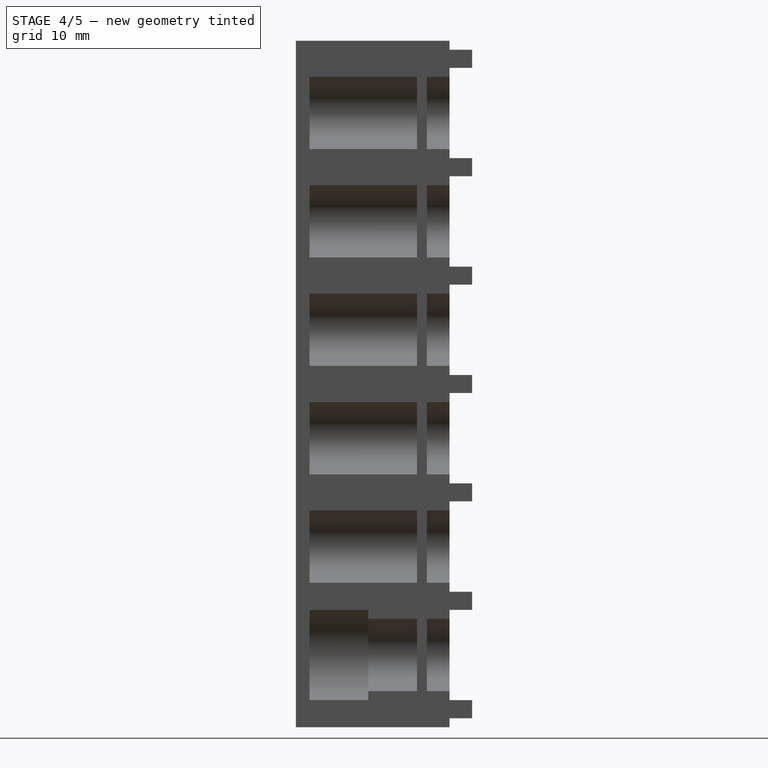
[diagram: stage 4 of 5 — right view after this stage's code; geometry added in this stage tinted green]
FEATURE [PartDesign::Pocket] Pocket011  label="P_N75"
  BaseFeature = -> Pocket010
  Length = 0.6
  Length2 = 100
  Profile = -> ShapeString007
  Type = 0
FEATURE [PartDesign::Pocket] Pocket012  label="P_N40"
  BaseFeature = -> Pocket011
  Length = 0.6
  Length2 = 100
  Profile = -> ShapeString006
  Type = 0
FEATURE [PartDesign::Pocket] Pocket013  label="P_N24"
  BaseFeature = -> Pocket012
  Length = 0.6
  Length2 = 100
  Profile = -> ShapeString005
  Type = 0
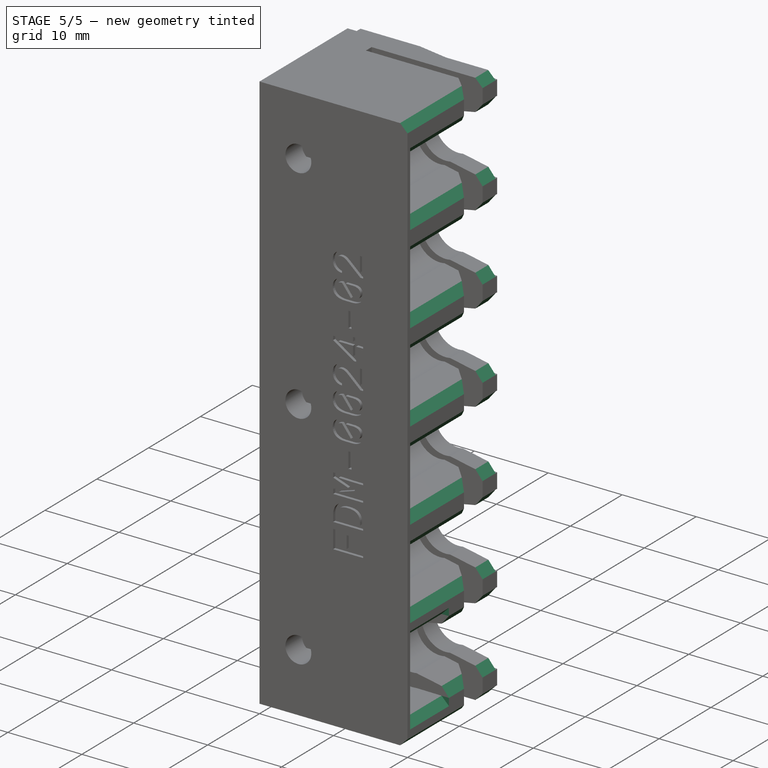
[diagram: stage 5 of 5 — iso view after this stage's code; geometry added in this stage tinted green]
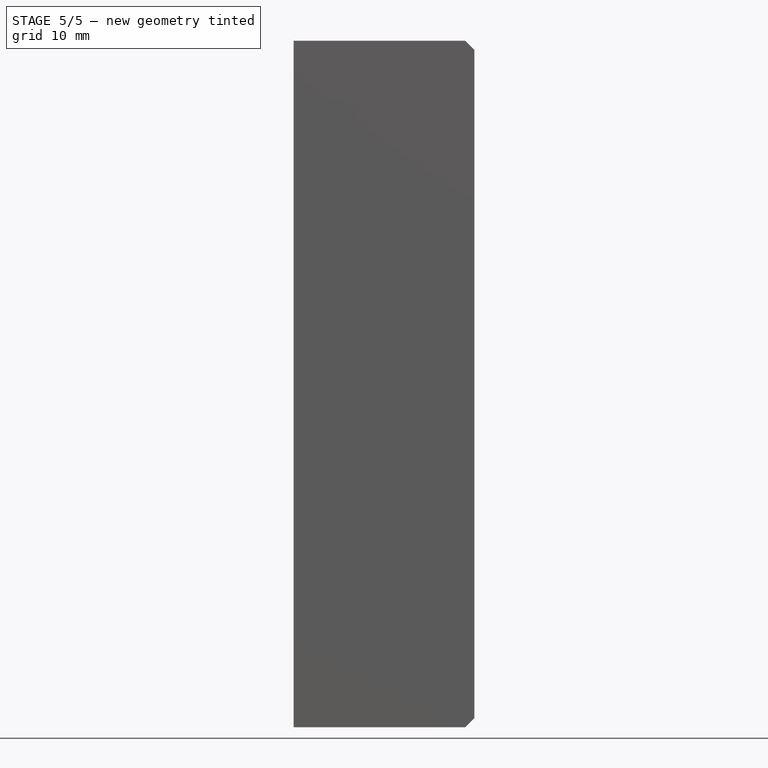
[diagram: stage 5 of 5 — front view after this stage's code; geometry added in this stage tinted green]
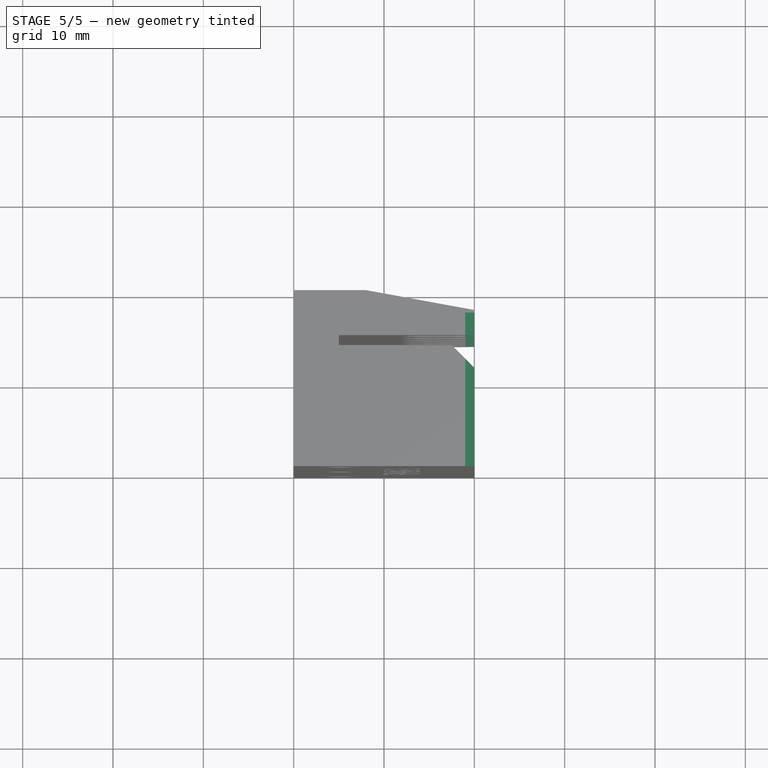
[diagram: stage 5 of 5 — top view after this stage's code; geometry added in this stage tinted green]
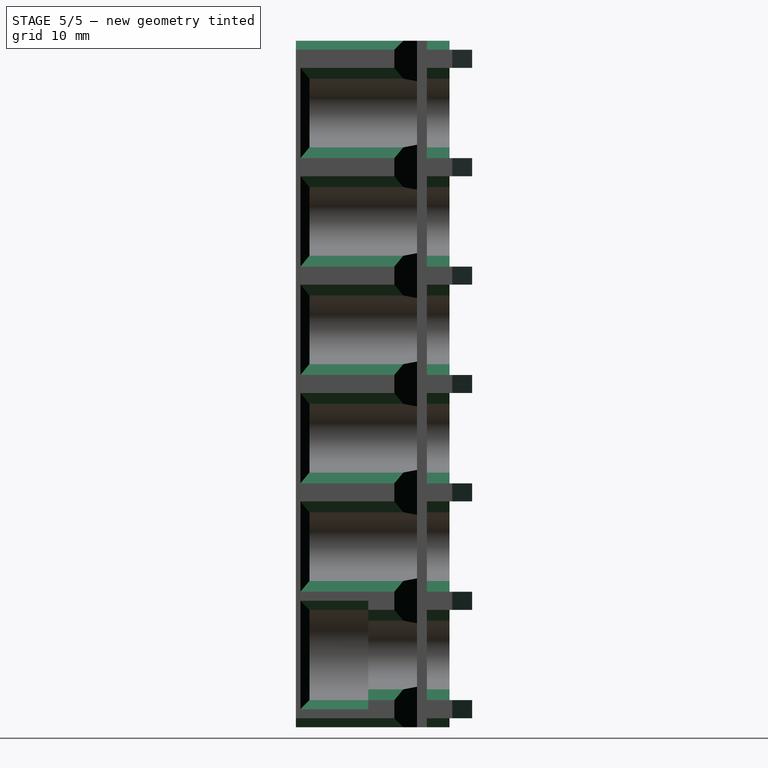
[diagram: stage 5 of 5 — right view after this stage's code; geometry added in this stage tinted green]
FEATURE [PartDesign::Chamfer] Chamfer  label="Chamfer_2.5mm"
  Angle = 45
  Base = -> Pocket013 [Edge4,Edge8,Edge12,Edge16,Edge20,Edge24,Edge28]
  BaseFeature = -> Pocket013
  ChamferType = 0
  FlipDirection = false
  Size = 2.5
  Size2 = 1
  SupportTransform = false
FEATURE [PartDesign::Chamfer] Chamfer001
  Angle = 30
  Base = -> Chamfer [Edge782,Edge1095,Edge1098,Edge1101,Edge1104,Edge1107,Edge1091]
  BaseFeature = -> Chamfer
  ChamferType = 1
  FlipDirection = false
  Size = 2.2
  Size2 = 12
  SupportTransform = false
FEATURE [PartDesign::Chamfer] Chamfer002
  Angle = 45
  Base = -> Chamfer001 [Edge513,Edge509,Edge503,Edge499,Edge493,Edge489,Edge483,Edge479,Edge473,Edge469,Edge138,Edge135,Edge14,Edge11,Edge72,Edge255,Edge261,Edge267,Edge271,Edge273,Edge275,Edge281,Edge279,Edge283,Edge278,Edge270,Edge262,Edge280,Edge276,Edge272,Edge268,Edge264,Edge260,Edge256,Edge263,Edge259]
  BaseFeature = -> Chamfer001
  ChamferType = 0
  FlipDirection = false
  Size = 1
  Size2 = 1
  SupportTransform = false
FEATURE [PartDesign::Plane] DatumPlane002  label="PrintPlane"
  Length = 64.2127
  MapMode = 5
  Placement = pos=(0,0,0) rot=(0.57735,-0.57735,-0.57735;2.0944rad)
  ResizeMode = 0
  Support = -> [Chamfer002]
  Width = 115.213
FEATURE [PartDesign::Body] Body
  Group = -> [Sketch,Pad,Sketch001,Pocket,Pocket015,Sketch005,Pocket003,DatumPlane,DatumPlane001,Pocket014,Sketch006,Pocket006,Sketch007,Pad001,ShapeString002,Pocket008,ShapeString003,ShapeString004,ShapeString005,ShapeString006,ShapeString007,Pocket009,Pocket010,Pocket011,Pocket012,Pocket013,Chamfer,ShapeString008,Chamfer001,Chamfer002,Sketch008,DatumPlane002]
  Origin = -> Origin
  Tip = -> Chamfer002
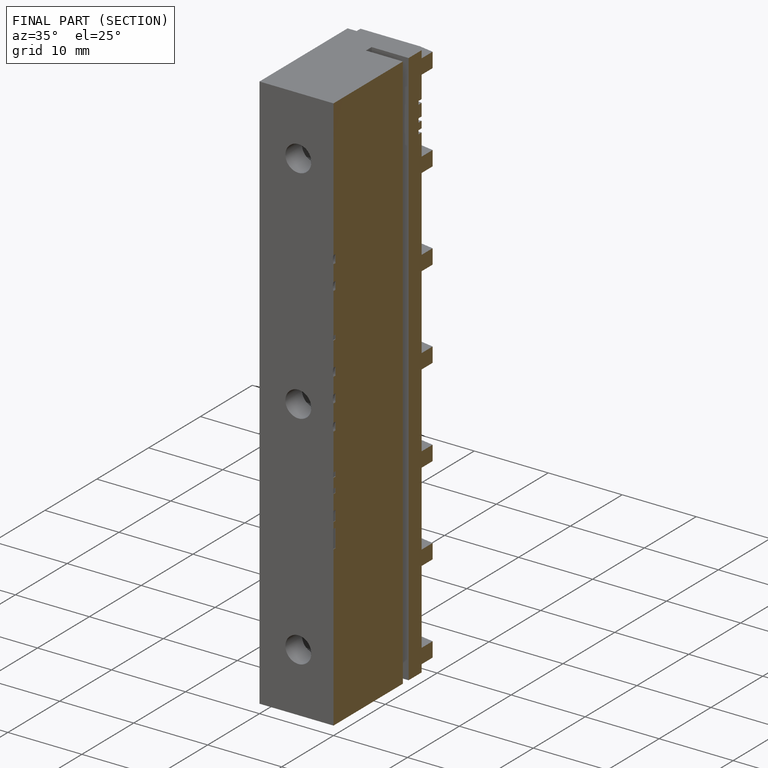
[diagram: finished part — half-section view (interior)]
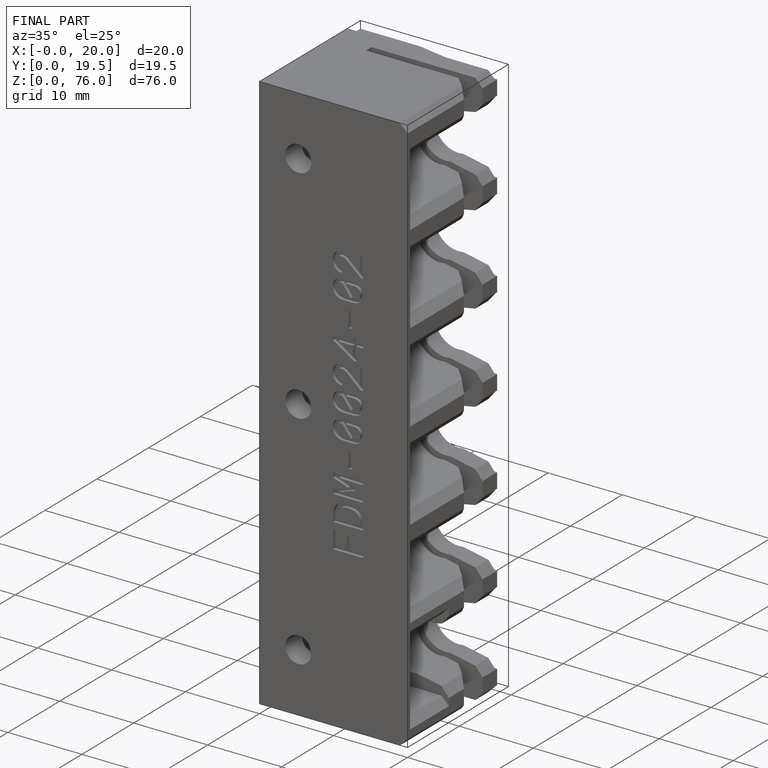
[diagram: finished part — iso view with bounding-box wireframe]
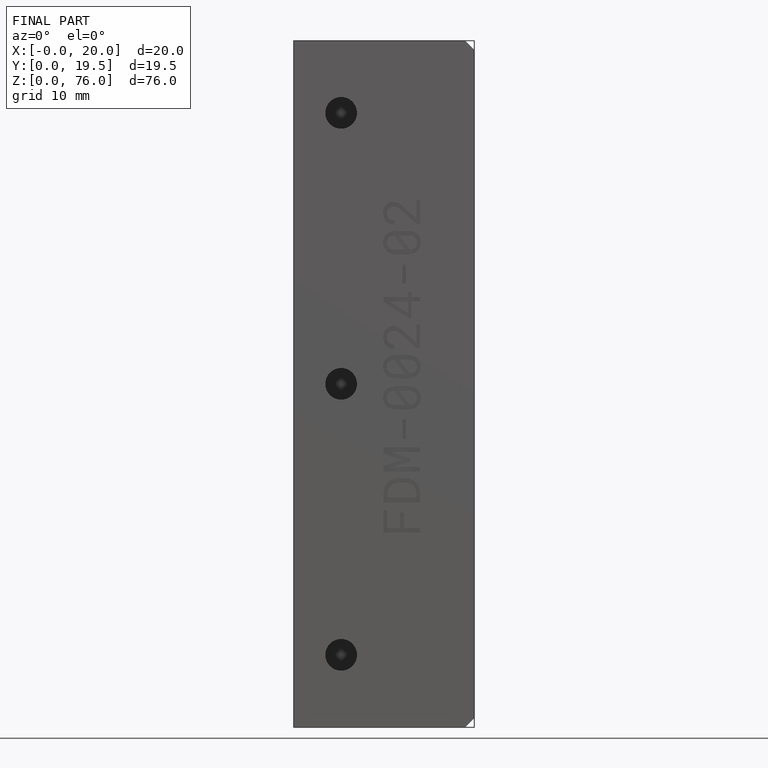
[diagram: finished part — front view with bounding-box wireframe]
